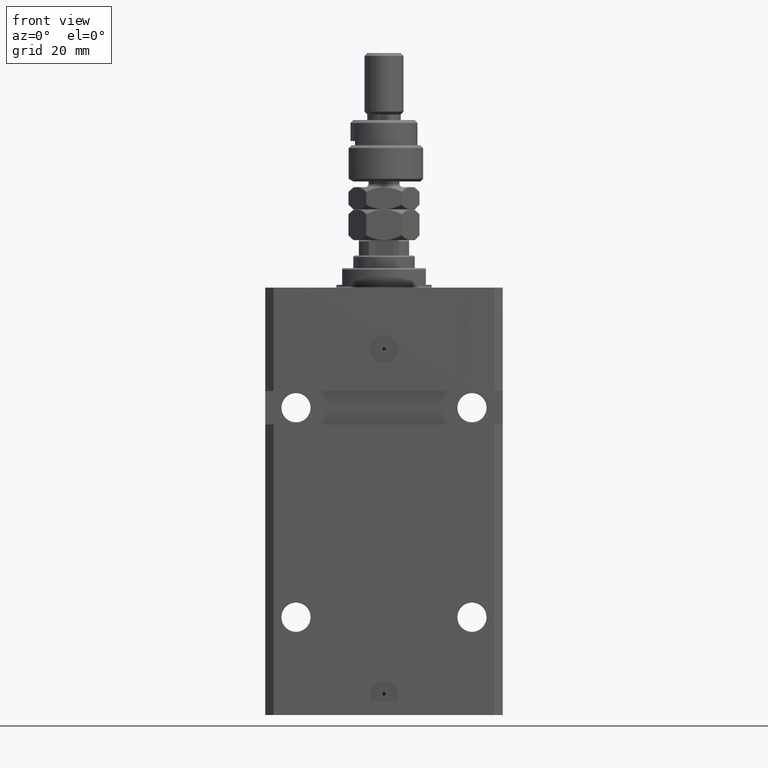
[diagram: clean part render]
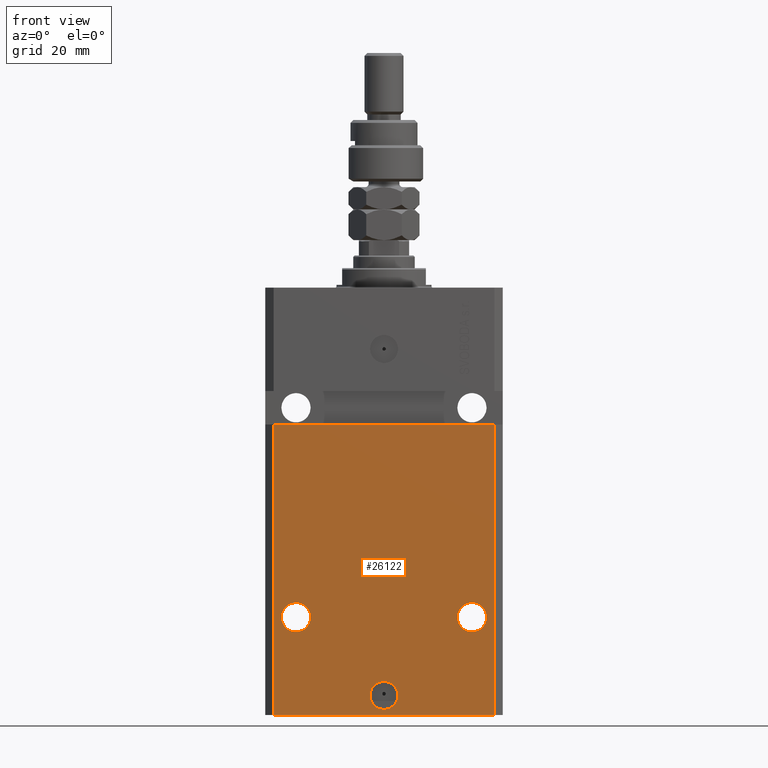
[diagram: same view with one face highlighted and labeled with its STEP entity id]
A machine part, front view. The second image highlights one B-rep face of the part: STEP entity #26122.
In plain terms, the highlighted planar face has unit normal (0, -1, 0).
Its self-contained STEP definition (entity closure, byte-faithful):
#262 = DIRECTION ( 'NONE',  ( 1.176083712526788232E-16, -1.000000000000000000, 0.000000000000000000 ) ) ;
#268 = DIRECTION ( 'NONE',  ( 0.000000000000000000, -1.000000000000000000, 0.000000000000000000 ) ) ;
#1326 = EDGE_LOOP ( 'NONE', ( #25517, #44096, #37142, #5306 ) ) ;
#2388 = CARTESIAN_POINT ( 'NONE',  ( -31.50000000000001421, -31.50000000000000711, -118.0000000000000000 ) ) ;
#2836 = CARTESIAN_POINT ( 'NONE',  ( 31.50000000000001421, -31.49999999999999289, -118.0000000000000000 ) ) ;
#2863 = EDGE_CURVE ( 'NONE', #46299, #40494, #10797, .T. ) ;
#3295 = VERTEX_POINT ( 'NONE', #34642 ) ;
#4022 = VERTEX_POINT ( 'NONE', #12057 ) ;
#5306 = ORIENTED_EDGE ( 'NONE', *, *, #49061, .T. ) ;
#7045 = DIRECTION ( 'NONE',  ( 0.000000000000000000, 0.000000000000000000, 1.000000000000000000 ) ) ;
#7462 = DIRECTION ( 'NONE',  ( 1.000000000000000000, 0.000000000000000000, 0.000000000000000000 ) ) ;
#7542 = DIRECTION ( 'NONE',  ( 1.176083712526788232E-16, -1.000000000000000000, 0.000000000000000000 ) ) ;
#9193 = VECTOR ( 'NONE', #43348, 1000.000000000000000 ) ;
#9513 = VERTEX_POINT ( 'NONE', #40998 ) ;
#10797 = CIRCLE ( 'NONE', #16565, 5.000000000000006217 ) ;
#11175 = CARTESIAN_POINT ( 'NONE',  ( 0.000000000000000000, -31.50000000000000000, -146.0000000000000000 ) ) ;
#11613 = FACE_OUTER_BOUND ( 'NONE', #1326, .T. ) ;
#12057 = CARTESIAN_POINT ( 'NONE',  ( -26.25000000000001776, -31.50000000000000711, -118.0000000000000000 ) ) ;
#12370 = CARTESIAN_POINT ( 'NONE',  ( -39.50000000000000711, -31.50000000000000000, -153.0000000000000000 ) ) ;
#12995 = CARTESIAN_POINT ( 'NONE',  ( -42.50000000000001421, -31.50000000000000711, -48.99999999999999289 ) ) ;
#13336 = VECTOR ( 'NONE', #39989, 1000.000000000000000 ) ;
#13466 = DIRECTION ( 'NONE',  ( 1.000000000000000000, 0.000000000000000000, 0.000000000000000000 ) ) ;
#14753 = DIRECTION ( 'NONE',  ( -1.000000000000000000, 0.000000000000000000, 0.000000000000000000 ) ) ;
#14877 = DIRECTION ( 'NONE',  ( 1.000000000000000000, 0.000000000000000000, 0.000000000000000000 ) ) ;
#15471 = DIRECTION ( 'NONE',  ( 0.000000000000000000, -0.000000000000000000, -1.000000000000000000 ) ) ;
#15807 = CIRCLE ( 'NONE', #38847, 5.000000000000006217 ) ;
#16100 = LINE ( 'NONE', #12995, #39628 ) ;
#16191 = VERTEX_POINT ( 'NONE', #21093 ) ;
#16565 = AXIS2_PLACEMENT_3D ( 'NONE', #24950, #30099, #14877 ) ;
#17053 = EDGE_CURVE ( 'NONE', #47750, #9513, #26004, .T. ) ;
#17110 = DIRECTION ( 'NONE',  ( 1.000000000000000000, 1.632680918566406054E-16, 1.632680918566406054E-16 ) ) ;
#17182 = CIRCLE ( 'NONE', #18031, 5.249999999999997335 ) ;
#18031 = AXIS2_PLACEMENT_3D ( 'NONE', #2388, #19131, #14753 ) ;
#19131 = DIRECTION ( 'NONE',  ( 1.176083712526788232E-16, -1.000000000000000000, 0.000000000000000000 ) ) ;
#20749 = EDGE_LOOP ( 'NONE', ( #46404, #36511 ) ) ;
#20927 = LINE ( 'NONE', #32524, #13336 ) ;
#21093 = CARTESIAN_POINT ( 'NONE',  ( -39.50000000000000711, -31.50000000000000000, -153.0000000000000000 ) ) ;
#21153 = ORIENTED_EDGE ( 'NONE', *, *, #44367, .F. ) ;
#21564 = ORIENTED_EDGE ( 'NONE', *, *, #2863, .F. ) ;
#22936 = FACE_BOUND ( 'NONE', #41593, .T. ) ;
#23706 = PLANE ( 'NONE',  #44384 ) ;
#24074 = CARTESIAN_POINT ( 'NONE',  ( -5.000000000000006217, -31.50000000000000000, -146.0000000000000000 ) ) ;
#24715 = ORIENTED_EDGE ( 'NONE', *, *, #17053, .F. ) ;
#24927 = CARTESIAN_POINT ( 'NONE',  ( -36.75000000000001421, -31.50000000000000711, -118.0000000000000000 ) ) ;
#24941 = EDGE_CURVE ( 'NONE', #46017, #4022, #17182, .T. ) ;
#24950 = CARTESIAN_POINT ( 'NONE',  ( 0.000000000000000000, -31.50000000000000000, -146.0000000000000000 ) ) ;
#25517 = ORIENTED_EDGE ( 'NONE', *, *, #35396, .F. ) ;
#26004 = CIRCLE ( 'NONE', #39175, 5.249999999999997335 ) ;
#26122 = ADVANCED_FACE ( 'NONE', ( #22936, #30672, #38638, #11613 ), #23706, .T. ) ;
#26488 = CIRCLE ( 'NONE', #44583, 5.249999999999997335 ) ;
#26685 = AXIS2_PLACEMENT_3D ( 'NONE', #47743, #40246, #13466 ) ;
#26711 = CARTESIAN_POINT ( 'NONE',  ( 5.000000000000006217, -31.50000000000000000, -146.0000000000000000 ) ) ;
#28075 = CARTESIAN_POINT ( 'NONE',  ( -31.50000000000001421, -31.50000000000000711, -118.0000000000000000 ) ) ;
#28268 = CARTESIAN_POINT ( 'NONE',  ( -39.50000000000000000, -31.50000000000000711, -48.99999999999999289 ) ) ;
#29982 = CARTESIAN_POINT ( 'NONE',  ( 36.75000000000001421, -31.49999999999999289, -118.0000000000000000 ) ) ;
#30099 = DIRECTION ( 'NONE',  ( 1.176083712526788232E-16, -1.000000000000000000, 0.000000000000000000 ) ) ;
#30672 = FACE_BOUND ( 'NONE', #50458, .T. ) ;
#31480 = VERTEX_POINT ( 'NONE', #28268 ) ;
#31764 = CARTESIAN_POINT ( 'NONE',  ( -39.50000000000000711, -31.50000000000000000, -153.0000000000000000 ) ) ;
#32524 = CARTESIAN_POINT ( 'NONE',  ( 39.50000000000000711, -31.50000000000000000, -153.0000000000000000 ) ) ;
#33475 = CARTESIAN_POINT ( 'NONE',  ( 39.50000000000000711, -31.50000000000000000, -153.0000000000000000 ) ) ;
#34353 = LINE ( 'NONE', #50089, #38060 ) ;
#34642 = CARTESIAN_POINT ( 'NONE',  ( 39.50000000000000000, -31.49999999999999289, -48.99999999999997868 ) ) ;
#35396 = EDGE_CURVE ( 'NONE', #31480, #3295, #16100, .T. ) ;
#35759 = EDGE_CURVE ( 'NONE', #16191, #49294, #43592, .T. ) ;
#36511 = ORIENTED_EDGE ( 'NONE', *, *, #24941, .F. ) ;
#36586 = EDGE_CURVE ( 'NONE', #40494, #46299, #15807, .T. ) ;
#37142 = ORIENTED_EDGE ( 'NONE', *, *, #35759, .T. ) ;
#37387 = CIRCLE ( 'NONE', #26685, 5.249999999999997335 ) ;
#38060 = VECTOR ( 'NONE', #7045, 1000.000000000000000 ) ;
#38638 = FACE_BOUND ( 'NONE', #20749, .T. ) ;
#38847 = AXIS2_PLACEMENT_3D ( 'NONE', #11175, #7542, #46713 ) ;
#39175 = AXIS2_PLACEMENT_3D ( 'NONE', #2836, #49996, #7462 ) ;
#39407 = DIRECTION ( 'NONE',  ( -1.000000000000000000, 0.000000000000000000, 0.000000000000000000 ) ) ;
#39628 = VECTOR ( 'NONE', #17110, 1000.000000000000000 ) ;
#39989 = DIRECTION ( 'NONE',  ( 0.000000000000000000, 0.000000000000000000, 1.000000000000000000 ) ) ;
#40246 = DIRECTION ( 'NONE',  ( 1.176083712526788232E-16, -1.000000000000000000, 0.000000000000000000 ) ) ;
#40494 = VERTEX_POINT ( 'NONE', #24074 ) ;
#40998 = CARTESIAN_POINT ( 'NONE',  ( 26.25000000000001776, -31.49999999999999289, -118.0000000000000000 ) ) ;
#41084 = ORIENTED_EDGE ( 'NONE', *, *, #36586, .F. ) ;
#41593 = EDGE_LOOP ( 'NONE', ( #21564, #41084 ) ) ;
#43348 = DIRECTION ( 'NONE',  ( 1.000000000000000000, 0.000000000000000000, 0.000000000000000000 ) ) ;
#43592 = LINE ( 'NONE', #31764, #9193 ) ;
#44096 = ORIENTED_EDGE ( 'NONE', *, *, #50633, .F. ) ;
#44367 = EDGE_CURVE ( 'NONE', #9513, #47750, #37387, .T. ) ;
#44384 = AXIS2_PLACEMENT_3D ( 'NONE', #12370, #268, #15471 ) ;
#44583 = AXIS2_PLACEMENT_3D ( 'NONE', #28075, #262, #39407 ) ;
#46017 = VERTEX_POINT ( 'NONE', #24927 ) ;
#46299 = VERTEX_POINT ( 'NONE', #26711 ) ;
#46404 = ORIENTED_EDGE ( 'NONE', *, *, #48333, .F. ) ;
#46713 = DIRECTION ( 'NONE',  ( 1.000000000000000000, 0.000000000000000000, 0.000000000000000000 ) ) ;
#47743 = CARTESIAN_POINT ( 'NONE',  ( 31.50000000000001421, -31.49999999999999289, -118.0000000000000000 ) ) ;
#47750 = VERTEX_POINT ( 'NONE', #29982 ) ;
#48333 = EDGE_CURVE ( 'NONE', #4022, #46017, #26488, .T. ) ;
#49061 = EDGE_CURVE ( 'NONE', #49294, #3295, #20927, .T. ) ;
#49294 = VERTEX_POINT ( 'NONE', #33475 ) ;
#49996 = DIRECTION ( 'NONE',  ( 1.176083712526788232E-16, -1.000000000000000000, 0.000000000000000000 ) ) ;
#50089 = CARTESIAN_POINT ( 'NONE',  ( -39.50000000000000711, -31.50000000000000000, -153.0000000000000000 ) ) ;
#50458 = EDGE_LOOP ( 'NONE', ( #24715, #21153 ) ) ;
#50633 = EDGE_CURVE ( 'NONE', #16191, #31480, #34353, .T. ) ;